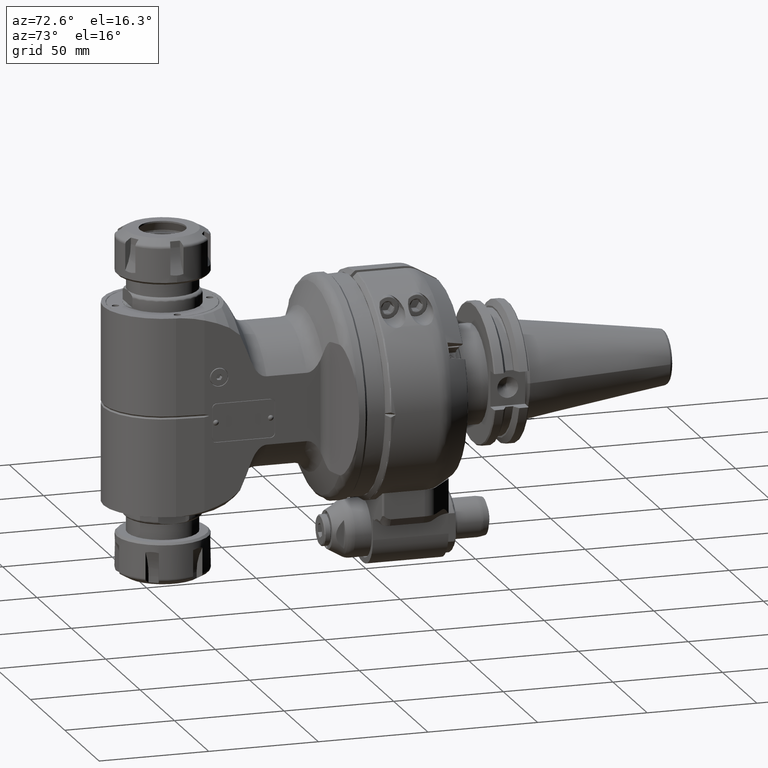
[diagram: clean part render]
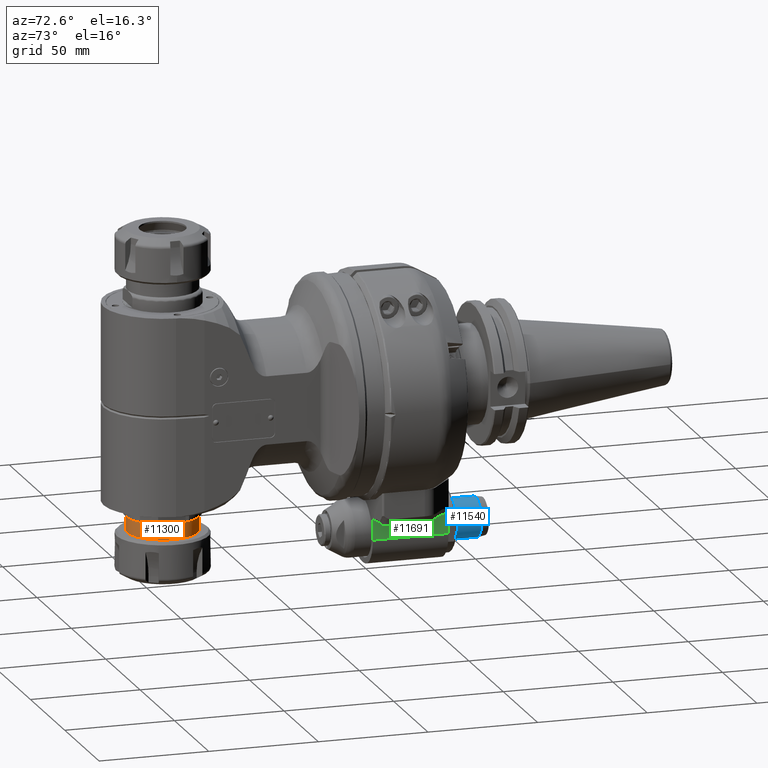
[diagram: same view with three faces highlighted in distinct colors, each labeled with its STEP entity id]
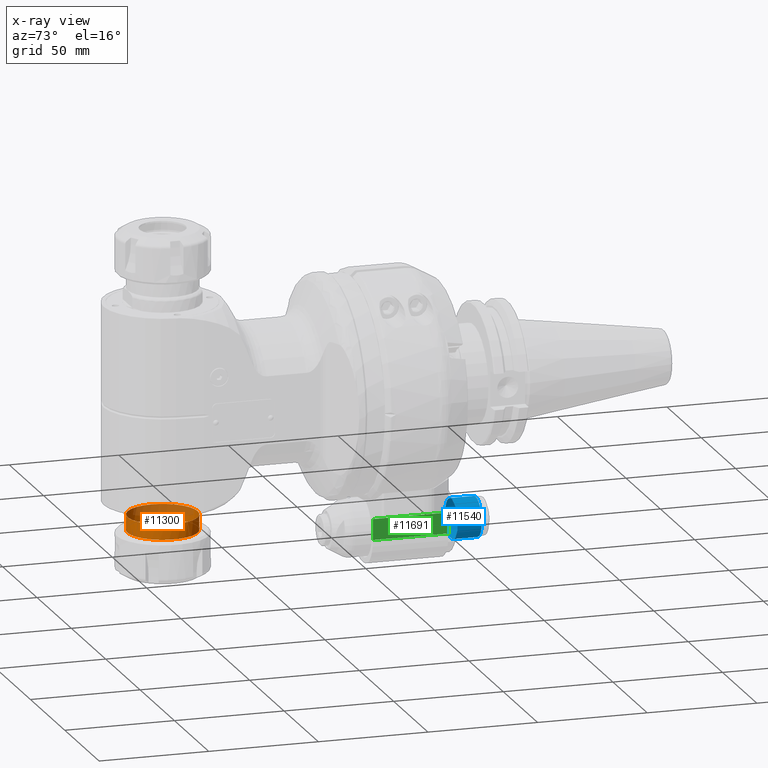
[diagram: x-ray of the same camera — body ghosted, the three highlighted faces saturated]
A machine part, auxiliary view with three faces highlighted in distinct colors.
The next image is the same camera in x-ray (body ghosted, the three faces saturated) — at least one of them is partly hidden behind the body in this view.
Their STEP definitions:

[orange] entity #11300 — the highlighted cylindrical surface (bore or boss wall) has radius 16 mm, axis along (0, -0, 1).
#726=CYLINDRICAL_SURFACE('',#12171,16.);
#982=CIRCLE('',#12163,16.);
#983=CIRCLE('',#12164,16.);
#985=CIRCLE('',#12170,16.);
#986=CIRCLE('',#12172,16.);
#1624=FACE_OUTER_BOUND('',#2342,.T.);
#2342=EDGE_LOOP('',(#7890,#7891,#7892,#7893,#7894,#7895));
#3124=LINE('',#17943,#3862);
#3862=VECTOR('',#13845,16.);
#4696=VERTEX_POINT('',#17875);
#4699=VERTEX_POINT('',#17911);
#4700=VERTEX_POINT('',#17913);
#4702=VERTEX_POINT('',#17942);
#5915=EDGE_CURVE('',#4696,#4699,#982,.T.);
#5916=EDGE_CURVE('',#4699,#4700,#983,.T.);
#5922=EDGE_CURVE('',#4700,#4696,#985,.T.);
#5923=EDGE_CURVE('',#4699,#4702,#3124,.T.);
#5924=EDGE_CURVE('',#4702,#4702,#986,.T.);
#7890=ORIENTED_EDGE('',*,*,#5915,.F.);
#7891=ORIENTED_EDGE('',*,*,#5922,.F.);
#7892=ORIENTED_EDGE('',*,*,#5916,.F.);
#7893=ORIENTED_EDGE('',*,*,#5923,.T.);
#7894=ORIENTED_EDGE('',*,*,#5924,.F.);
#7895=ORIENTED_EDGE('',*,*,#5923,.F.);
#11300=ADVANCED_FACE('',(#1624),#726,.T.);
#12163=AXIS2_PLACEMENT_3D('',#17912,#13826,#13827);
#12164=AXIS2_PLACEMENT_3D('',#17914,#13828,#13829);
#12170=AXIS2_PLACEMENT_3D('',#17940,#13841,#13842);
#12171=AXIS2_PLACEMENT_3D('',#17941,#13843,#13844);
#12172=AXIS2_PLACEMENT_3D('',#17944,#13846,#13847);
#13826=DIRECTION('center_axis',(0.,0.,-1.));
#13827=DIRECTION('ref_axis',(0.,1.,0.));
#13828=DIRECTION('center_axis',(0.,0.,-1.));
#13829=DIRECTION('ref_axis',(0.,1.,0.));
#13841=DIRECTION('center_axis',(0.,0.,-1.));
#13842=DIRECTION('ref_axis',(0.,-1.,0.));
#13843=DIRECTION('center_axis',(0.,0.,-1.));
#13844=DIRECTION('ref_axis',(0.,-1.,0.));
#13845=DIRECTION('',(0.,0.,1.));
#13846=DIRECTION('center_axis',(0.,0.,1.));
#13847=DIRECTION('ref_axis',(1.,0.,0.));
#17875=CARTESIAN_POINT('',(-16.,-86.,51.50000028753));
#17911=CARTESIAN_POINT('',(1.95943487863577E-15,-70.,51.50000028753));
#17912=CARTESIAN_POINT('Origin',(0.,-86.,51.50000028753));
#17913=CARTESIAN_POINT('',(16.,-86.,51.50000028753));
#17914=CARTESIAN_POINT('Origin',(0.,-86.,51.50000028753));
#17940=CARTESIAN_POINT('Origin',(0.,-86.,51.50000028753));
#17941=CARTESIAN_POINT('Origin',(0.,-86.,65.71442900196));
#17942=CARTESIAN_POINT('',(1.95943487863577E-15,-70.,58.50000042753));
#17943=CARTESIAN_POINT('',(1.95943487863577E-15,-70.,65.71442900196));
#17944=CARTESIAN_POINT('Origin',(0.,-86.,58.50000042753));

[blue] entity #11540 — the highlighted cylindrical surface (bore or boss wall) has radius 9 mm, axis along (0, 1, 0).
#791=CYLINDRICAL_SURFACE('',#12666,0.354330708661417);
#1209=CIRCLE('',#12664,0.354330708661417);
#1211=CIRCLE('',#12667,0.354330708661417);
#1212=CIRCLE('',#12668,0.354330708661417);
#1864=FACE_OUTER_BOUND('',#2618,.T.);
#2618=EDGE_LOOP('',(#9086,#9087,#9088,#9089,#9090));
#3389=LINE('',#20221,#4127);
#4127=VECTOR('',#15104,0.354330708661417);
#5118=VERTEX_POINT('',#20213);
#5119=VERTEX_POINT('',#20217);
#5120=VERTEX_POINT('',#20218);
#6541=EDGE_CURVE('',#5118,#5118,#1209,.T.);
#6543=EDGE_CURVE('',#5119,#5120,#1211,.T.);
#6544=EDGE_CURVE('',#5120,#5119,#1212,.T.);
#6545=EDGE_CURVE('',#5120,#5118,#3389,.T.);
#9086=ORIENTED_EDGE('',*,*,#6543,.F.);
#9087=ORIENTED_EDGE('',*,*,#6544,.F.);
#9088=ORIENTED_EDGE('',*,*,#6545,.T.);
#9089=ORIENTED_EDGE('',*,*,#6541,.F.);
#9090=ORIENTED_EDGE('',*,*,#6545,.F.);
#11540=ADVANCED_FACE('',(#1864),#791,.T.);
#12664=AXIS2_PLACEMENT_3D('',#20214,#15094,#15095);
#12666=AXIS2_PLACEMENT_3D('',#20216,#15098,#15099);
#12667=AXIS2_PLACEMENT_3D('',#20219,#15100,#15101);
#12668=AXIS2_PLACEMENT_3D('',#20220,#15102,#15103);
#15094=DIRECTION('center_axis',(0.,-1.,0.));
#15095=DIRECTION('ref_axis',(0.,0.,1.));
#15098=DIRECTION('center_axis',(0.,1.,0.));
#15099=DIRECTION('ref_axis',(0.,0.,1.));
#15100=DIRECTION('center_axis',(0.,1.,0.));
#15101=DIRECTION('ref_axis',(0.,0.,1.));
#15102=DIRECTION('center_axis',(0.,1.,0.));
#15103=DIRECTION('ref_axis',(0.,0.,-1.));
#15104=DIRECTION('',(0.,-1.,0.));
#20213=CARTESIAN_POINT('',(-4.33929968201818E-17,1.79133858267717,-2.91338582677165));
#20214=CARTESIAN_POINT('Origin',(0.,1.79133858267717,-2.55905511811024));
#20216=CARTESIAN_POINT('Origin',(0.,1.22047244094488,-2.55905511811024));
#20217=CARTESIAN_POINT('',(0.,2.22687231032953,-2.20472440944882));
#20218=CARTESIAN_POINT('',(4.50239072329528E-16,2.22687231032953,-2.91338582677165));
#20219=CARTESIAN_POINT('Origin',(0.,2.22687231032953,-2.55905511811024));
#20220=CARTESIAN_POINT('Origin',(0.,2.22687231032953,-2.55905511811024));
#20221=CARTESIAN_POINT('',(-4.33929968201818E-17,1.22047244094488,-2.91338582677165));

[green] entity #11691 — the highlighted planar face has unit normal (-1, 0, 0).
#492=(
BOUNDED_CURVE()
B_SPLINE_CURVE(2,(#22457,#22458,#22459),.UNSPECIFIED.,.F.,.F.)
B_SPLINE_CURVE_WITH_KNOTS((3,3),(-2.58287776726093,-2.57434975898472),
 .UNSPECIFIED.)
CURVE()
GEOMETRIC_REPRESENTATION_ITEM()
RATIONAL_B_SPLINE_CURVE((1.44254286468392,1.44297118444748,1.44339185140923))
REPRESENTATION_ITEM('')
);
#659=B_SPLINE_CURVE_WITH_KNOTS('',3,(#22460,#22461,#22462,#22463,#22464,
#22465),.UNSPECIFIED.,.F.,.F.,(4,1,1,4),(0.,0.3333333333333,0.6666666666667,
1.),.UNSPECIFIED.);
#2015=FACE_OUTER_BOUND('',#2792,.T.);
#2792=EDGE_LOOP('',(#9833,#9834,#9835,#9836,#9837,#9838,#9839));
#3325=LINE('',#19510,#4063);
#3370=LINE('',#19891,#4108);
#3373=LINE('',#19897,#4111);
#3524=LINE('',#22303,#4262);
#3540=LINE('',#22455,#4278);
#4063=VECTOR('',#14902,0.374015748031496);
#4108=VECTOR('',#15033,0.0300381073873583);
#4111=VECTOR('',#15036,0.342850056237795);
#4262=VECTOR('',#15803,1.35826771653543);
#4278=VECTOR('',#15855,1.35826771653543);
#5025=VERTEX_POINT('',#19507);
#5026=VERTEX_POINT('',#19509);
#5090=VERTEX_POINT('',#19888);
#5091=VERTEX_POINT('',#19890);
#5093=VERTEX_POINT('',#19894);
#5094=VERTEX_POINT('',#19896);
#5339=VERTEX_POINT('',#22456);
#6424=EDGE_CURVE('',#5026,#5025,#3325,.T.);
#6505=EDGE_CURVE('',#5091,#5090,#3370,.T.);
#6508=EDGE_CURVE('',#5094,#5093,#3373,.T.);
#6877=EDGE_CURVE('',#5090,#5026,#3524,.T.);
#6900=EDGE_CURVE('',#5094,#5025,#3540,.T.);
#6901=EDGE_CURVE('',#5339,#5093,#492,.T.);
#6902=EDGE_CURVE('',#5091,#5339,#659,.T.);
#9833=ORIENTED_EDGE('',*,*,#6877,.T.);
#9834=ORIENTED_EDGE('',*,*,#6424,.T.);
#9835=ORIENTED_EDGE('',*,*,#6900,.F.);
#9836=ORIENTED_EDGE('',*,*,#6508,.T.);
#9837=ORIENTED_EDGE('',*,*,#6901,.F.);
#9838=ORIENTED_EDGE('',*,*,#6902,.F.);
#9839=ORIENTED_EDGE('',*,*,#6505,.T.);
#11104=PLANE('',#12968);
#11691=ADVANCED_FACE('',(#2015),#11104,.F.);
#12968=AXIS2_PLACEMENT_3D('',#22454,#15853,#15854);
#14902=DIRECTION('',(0.,0.,-1.));
#15033=DIRECTION('',(-3.073496587321E-9,-8.940363043052E-13,1.));
#15036=DIRECTION('',(0.,0.,1.));
#15803=DIRECTION('',(0.,-1.,0.));
#15853=DIRECTION('center_axis',(-1.,0.,0.));
#15854=DIRECTION('ref_axis',(0.,-1.,0.));
#15855=DIRECTION('',(0.,-1.,0.));
#19507=CARTESIAN_POINT('',(0.590551181102362,0.196850393700787,-2.63779527559055));
#19509=CARTESIAN_POINT('',(0.590551181102362,0.196850393700787,-2.26377952755906));
#19510=CARTESIAN_POINT('',(0.590551181102362,0.196850393700787,-2.26377952755906));
#19888=CARTESIAN_POINT('',(0.590551181102362,1.55511811023622,-2.26377952755906));
#19890=CARTESIAN_POINT('',(0.590551181222601,1.55511811024408,-2.29381763497542));
#19891=CARTESIAN_POINT('',(0.590551181194488,1.55511811023622,-2.29381763494646));
#19894=CARTESIAN_POINT('',(0.590551181102362,1.55511811023622,-2.29494521935276));
#19896=CARTESIAN_POINT('',(0.590551181102362,1.55511811023622,-2.63779527559055));
#19897=CARTESIAN_POINT('',(0.590551181102362,1.55511811023622,-2.63779527559055));
#22303=CARTESIAN_POINT('',(0.590551181102362,1.55511811023622,-2.26377952755906));
#22454=CARTESIAN_POINT('Origin',(0.590551181102362,2.05905511811024,-1.48818888188976));
#22455=CARTESIAN_POINT('',(0.590551181102362,1.55511811023622,-2.63779527559055));
#22456=CARTESIAN_POINT('',(0.590551181004967,1.552724727978,-2.29485159389878));
#22457=CARTESIAN_POINT('Ctrl Pts',(0.590551181102362,1.55272472798404,-2.29485159391092));
#22458=CARTESIAN_POINT('Ctrl Pts',(0.590551181102362,1.55392211207035,-2.29489884237391));
#22459=CARTESIAN_POINT('Ctrl Pts',(0.590551181102362,1.55511811023633,-2.29494521935276));
#22460=CARTESIAN_POINT('Ctrl Pts',(0.590551181194488,1.55511811023622,-2.29381763494646));
#22461=CARTESIAN_POINT('Ctrl Pts',(0.590551181194488,1.55485262470827,-2.29393132485039));
#22462=CARTESIAN_POINT('Ctrl Pts',(0.59055118104685,1.55432135627598,-2.29415950008386));
#22463=CARTESIAN_POINT('Ctrl Pts',(0.590551181157874,1.55352356670748,-2.29450414821102));
#22464=CARTESIAN_POINT('Ctrl Pts',(0.590551181009842,1.55299110667874,-2.29473551246732));
#22465=CARTESIAN_POINT('Ctrl Pts',(0.590551181009842,1.55272472799291,-2.29485159390591));